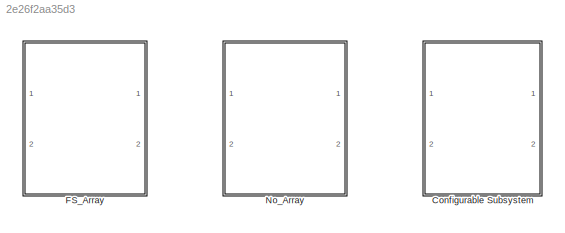
MODEL slx_2e26f2aa35d3
KIND library
CONFIG AbsTol = auto
CONFIG EnableMultiTasking = off
CONFIG FixedStep = auto
CONFIG MaxStep = auto
CONFIG MinStep = auto
CONFIG RelTol = 1e-3
CONFIG SampleTimeConstraint = Unconstrained
CONFIG Solver = VariableStepAuto
CONFIG SolverName = VariableStepAuto
CONFIG StartTime = 0.0
CONFIG StopTime = 10.0
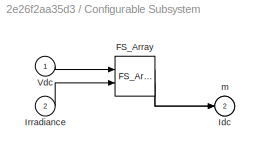
BLOCK [SubSystem] Configurable Subsystem
  BlockChoice = FS_Array
  MemberBlocks = FS_Array,No_Array
  Ports = [2, 2]
  RequestExecContextInheritance = off
  TemplateBlock = self
BLOCK [Reference] Configurable Subsystem/FS_Array  REF=$bdroot/FS_Array
  Ports = [2, 2]
  SourceBlock = $bdroot/FS_Array
  SourceType = SubSystem
BLOCK [Outport] Configurable Subsystem/Idc
BLOCK [Inport] Configurable Subsystem/Irradiance
  Port = 2
BLOCK [Inport] Configurable Subsystem/Vdc
BLOCK [Outport] Configurable Subsystem/m
  Port = 2
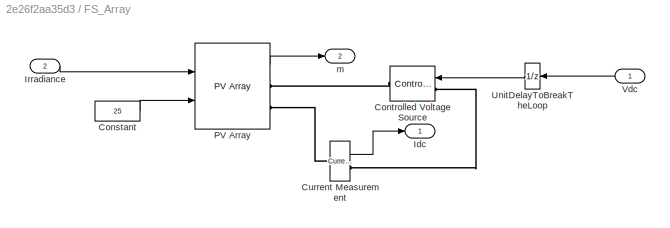
BLOCK [SubSystem] FS_Array
  Ports = [2, 2]
  RequestExecContextInheritance = off
BLOCK [Constant] FS_Array/Constant
  Value = 25
BLOCK [Reference] FS_Array/Controlled Voltage Source  REF=powerlib/Electrical
Sources/Controlled Voltage Source
  Ports = [1, 0, 0, 0, 0, 1, 1]
  SourceBlock = powerlib/Electrical\nSources/Controlled Voltage Source
  SourceProductBaseCode = PS
  SourceType = Controlled Voltage Source
BLOCK [Reference] FS_Array/Current Measurement  REF=powerlib/Measurements/Current Measurement
  Ports = [0, 1, 0, 0, 0, 1, 1]
  SourceBlock = powerlib/Measurements/Current Measurement
  SourceProductBaseCode = PS
  SourceType = Current Measurement
  UserDataPersistent = on
BLOCK [Outport] FS_Array/Idc
BLOCK [Inport] FS_Array/Irradiance
  Port = 2
BLOCK [Reference] FS_Array/PV Array  REF=re_lib/Solar/PV Array
  Ports = [2, 1, 0, 0, 0, 0, 2]
  SourceBlock = re_lib/Solar/PV Array
  SourceProductBaseCode = PS
  SourceType = PV array
BLOCK [UnitDelay] FS_Array/UnitDelayToBreakTheLoop
  HasFrameUpgradeWarning = on
  InitialCondition = 1000
  SampleTime = -1
BLOCK [Inport] FS_Array/Vdc
BLOCK [Outport] FS_Array/m
  Port = 2
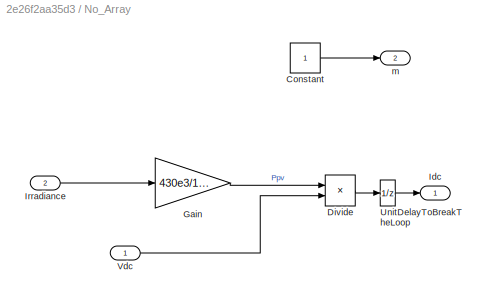
BLOCK [SubSystem] No_Array
  Ports = [2, 2]
  RequestExecContextInheritance = off
BLOCK [Constant] No_Array/Constant
BLOCK [Product] No_Array/Divide
  Inputs = */
  Ports = [2, 1]
BLOCK [Gain] No_Array/Gain
  Gain = 430e3/1000
BLOCK [Outport] No_Array/Idc
BLOCK [Inport] No_Array/Irradiance
  Port = 2
BLOCK [UnitDelay] No_Array/UnitDelayToBreakTheLoop
  HasFrameUpgradeWarning = on
  InitialCondition = 1000
  NameLocation = top
  SampleTime = -1
BLOCK [Inport] No_Array/Vdc
  NameLocation = top
BLOCK [Outport] No_Array/m
  Port = 2
LINE Configurable Subsystem/FS_Array:1 -> Configurable Subsystem/Idc:1
LINE Configurable Subsystem/FS_Array:2 -> Configurable Subsystem/m:1
LINE Configurable Subsystem/Irradiance:1 -> Configurable Subsystem/FS_Array:2
LINE Configurable Subsystem/Vdc:1 -> Configurable Subsystem/FS_Array:1
LINE FS_Array/Constant:1 -> FS_Array/PV Array:2
LINE FS_Array/Current Measurement:1 -> FS_Array/Idc:1
LINE FS_Array/Irradiance:1 -> FS_Array/PV Array:1
LINE FS_Array/PV Array:1 -> FS_Array/m:1
LINE FS_Array/UnitDelayToBreakTheLoop:1 -> FS_Array/Controlled Voltage Source:1
LINE FS_Array/Vdc:1 -> FS_Array/UnitDelayToBreakTheLoop:1
LINE No_Array/Constant:1 -> No_Array/m:1
LINE No_Array/Divide:1 -> No_Array/UnitDelayToBreakTheLoop:1
LINE No_Array/Gain:1 -> No_Array/Divide:1
LINE No_Array/Irradiance:1 -> No_Array/Gain:1
LINE No_Array/UnitDelayToBreakTheLoop:1 -> No_Array/Idc:1
LINE No_Array/Vdc:1 -> No_Array/Divide:2
PLINE FS_Array/Controlled Voltage Source:LConn1 -- FS_Array/Current Measurement:RConn1
PLINE FS_Array/Controlled Voltage Source:RConn1 -- FS_Array/PV Array:RConn1
PLINE FS_Array/Current Measurement:LConn1 -- FS_Array/PV Array:RConn2
